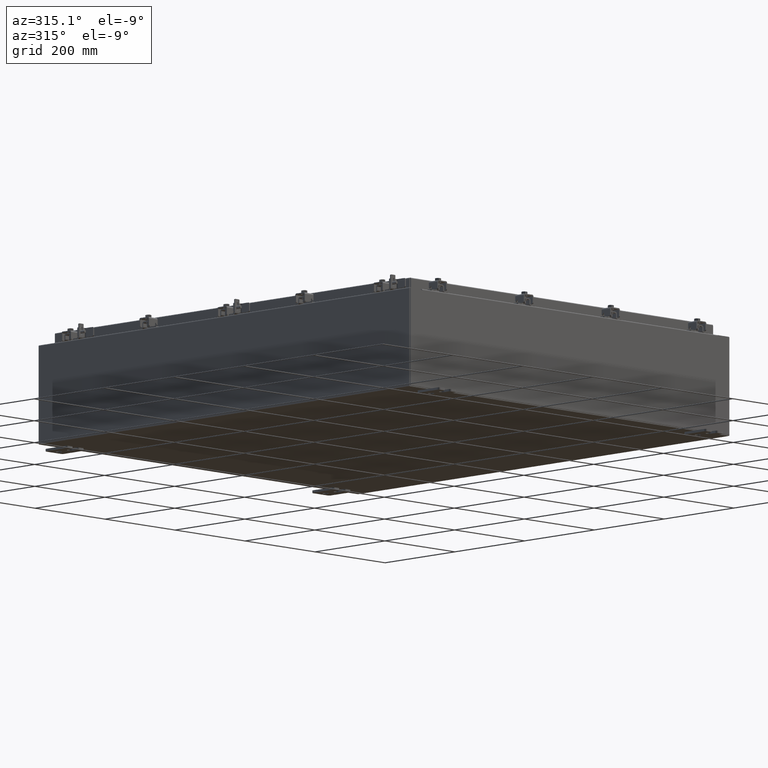
[diagram: clean part render]
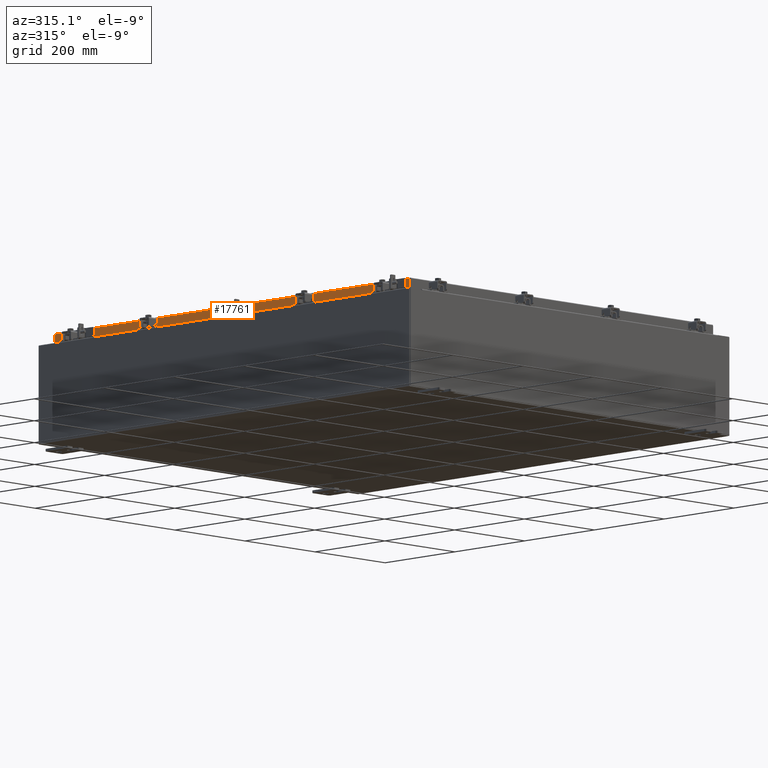
[diagram: same view with one face highlighted and labeled with its STEP entity id]
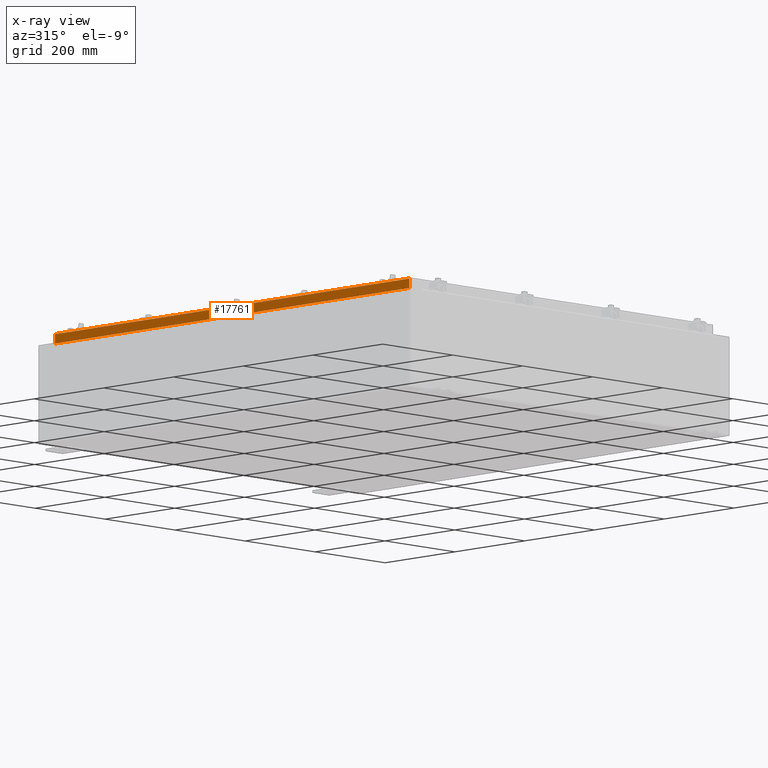
[diagram: x-ray of the same camera — body ghosted, the highlighted face saturated]
A machine part, auxiliary view. The second image highlights one B-rep face of the part: STEP entity #17761.
The next image is the same camera in x-ray: the body ghosted, the highlighted face saturated — about 0% of this face is hidden behind the body in this view.
In plain terms, the highlighted planar face has unit normal (1, 0, -0).
Its self-contained STEP definition (entity closure, byte-faithful):
#480 = ORIENTED_EDGE ( 'NONE', *, *, #5337, .F. ) ;
#779 = VERTEX_POINT ( 'NONE', #24523 ) ;
#1811 = CARTESIAN_POINT ( 'NONE',  ( -17.07799999999998900, -19.25515786437626200, -0.8500000000000019800 ) ) ;
#2066 = EDGE_CURVE ( 'NONE', #779, #15724, #6967, .T. ) ;
#2081 = VECTOR ( 'NONE', #9501, 39.37007874015748100 ) ;
#2546 = ORIENTED_EDGE ( 'NONE', *, *, #4453, .F. ) ;
#3585 = VECTOR ( 'NONE', #10261, 39.37007874015748100 ) ;
#3816 = VECTOR ( 'NONE', #4739, 39.37007874015748100 ) ;
#4453 = EDGE_CURVE ( 'NONE', #15724, #18951, #8522, .T. ) ;
#4459 = VECTOR ( 'NONE', #11567, 39.37007874015748100 ) ;
#4739 = DIRECTION ( 'NONE',  ( -2.818880942772360100E-015, 6.982962677686265900E-015, -1.000000000000000000 ) ) ;
#5337 = EDGE_CURVE ( 'NONE', #18320, #6444, #6809, .T. ) ;
#6219 = EDGE_CURVE ( 'NONE', #18951, #10452, #26258, .T. ) ;
#6394 = ORIENTED_EDGE ( 'NONE', *, *, #2066, .F. ) ;
#6444 = VERTEX_POINT ( 'NONE', #18999 ) ;
#6809 = LINE ( 'NONE', #20359, #23043 ) ;
#6967 = LINE ( 'NONE', #17131, #2081 ) ;
#7117 = ORIENTED_EDGE ( 'NONE', *, *, #23597, .F. ) ;
#7197 = PLANE ( 'NONE',  #15615 ) ;
#8522 = LINE ( 'NONE', #17511, #3585 ) ;
#9445 = LINE ( 'NONE', #23699, #3816 ) ;
#9501 = DIRECTION ( 'NONE',  ( 4.379057701015054300E-047, 1.000000000000000000, 1.189592412887544000E-016 ) ) ;
#10261 = DIRECTION ( 'NONE',  ( -0.0000000000000000000, 1.000000000000000000, -0.0000000000000000000 ) ) ;
#10452 = VERTEX_POINT ( 'NONE', #20856 ) ;
#11567 = DIRECTION ( 'NONE',  ( 4.379057701015054300E-047, 1.000000000000000000, 1.189592412887544000E-016 ) ) ;
#11834 = CARTESIAN_POINT ( 'NONE',  ( -17.07799999999998900, 19.25515786437628000, -0.8500000000000019800 ) ) ;
#12536 = ORIENTED_EDGE ( 'NONE', *, *, #14741, .T. ) ;
#13573 = DIRECTION ( 'NONE',  ( -2.818880942772360100E-015, 0.0000000000000000000, -1.000000000000000000 ) ) ;
#14741 = EDGE_CURVE ( 'NONE', #18320, #10452, #9445, .T. ) ;
#14977 = DIRECTION ( 'NONE',  ( -2.818880942772360100E-015, 6.982962677686265900E-015, -1.000000000000000000 ) ) ;
#15615 = AXIS2_PLACEMENT_3D ( 'NONE', #19860, #26198, #13573 ) ;
#15724 = VERTEX_POINT ( 'NONE', #1811 ) ;
#17131 = CARTESIAN_POINT ( 'NONE',  ( -17.07800000000000300, -20.09400000000000100, -0.8499999999999996400 ) ) ;
#17511 = CARTESIAN_POINT ( 'NONE',  ( -17.07799999999998900, -19.25515786437626500, -0.8500000000000019800 ) ) ;
#17761 = ADVANCED_FACE ( 'NONE', ( #21872 ), #7197, .F. ) ;
#18320 = VERTEX_POINT ( 'NONE', #24505 ) ;
#18951 = VERTEX_POINT ( 'NONE', #11834 ) ;
#18999 = CARTESIAN_POINT ( 'NONE',  ( -17.07800000000000300, -20.00515786437626900, -0.08770000000000007000 ) ) ;
#19021 = ORIENTED_EDGE ( 'NONE', *, *, #6219, .F. ) ;
#19123 = CARTESIAN_POINT ( 'NONE',  ( -17.07800000000000300, -20.09400000000000100, -0.8499999999999996400 ) ) ;
#19860 = CARTESIAN_POINT ( 'NONE',  ( -17.07800000000000300, -5.726798841186357800E-030, 4.840166239667795300E-014 ) ) ;
#20204 = EDGE_LOOP ( 'NONE', ( #480, #12536, #19021, #2546, #6394, #7117 ) ) ;
#20323 = VECTOR ( 'NONE', #14977, 39.37007874015748100 ) ;
#20359 = CARTESIAN_POINT ( 'NONE',  ( -17.07800000000000300, -20.09400000000000100, -0.08770000000000007000 ) ) ;
#20856 = CARTESIAN_POINT ( 'NONE',  ( -17.07800000000000300, 20.00515786437628000, -0.8499999999999948700 ) ) ;
#21374 = CARTESIAN_POINT ( 'NONE',  ( -17.07800000000000300, -20.00515786437626900, -0.07469999999999978000 ) ) ;
#21815 = DIRECTION ( 'NONE',  ( 3.353319382355286300E-031, -1.000000000000000000, -9.140369321716364000E-046 ) ) ;
#21872 = FACE_OUTER_BOUND ( 'NONE', #20204, .T. ) ;
#23043 = VECTOR ( 'NONE', #21815, 39.37007874015748100 ) ;
#23597 = EDGE_CURVE ( 'NONE', #6444, #779, #25886, .T. ) ;
#23699 = CARTESIAN_POINT ( 'NONE',  ( -17.07800000000000300, 20.00515786437627200, 1.880969331248393900E-013 ) ) ;
#24505 = CARTESIAN_POINT ( 'NONE',  ( -17.07800000000000300, 20.00515786437626900, -0.08770000000000007000 ) ) ;
#24523 = CARTESIAN_POINT ( 'NONE',  ( -17.07800000000000300, -20.00515786437626500, -0.8499999999999996400 ) ) ;
#25886 = LINE ( 'NONE', #21374, #20323 ) ;
#26198 = DIRECTION ( 'NONE',  ( 1.000000000000000000, 3.353319382355285900E-031, -2.818880942772360100E-015 ) ) ;
#26258 = LINE ( 'NONE', #19123, #4459 ) ;